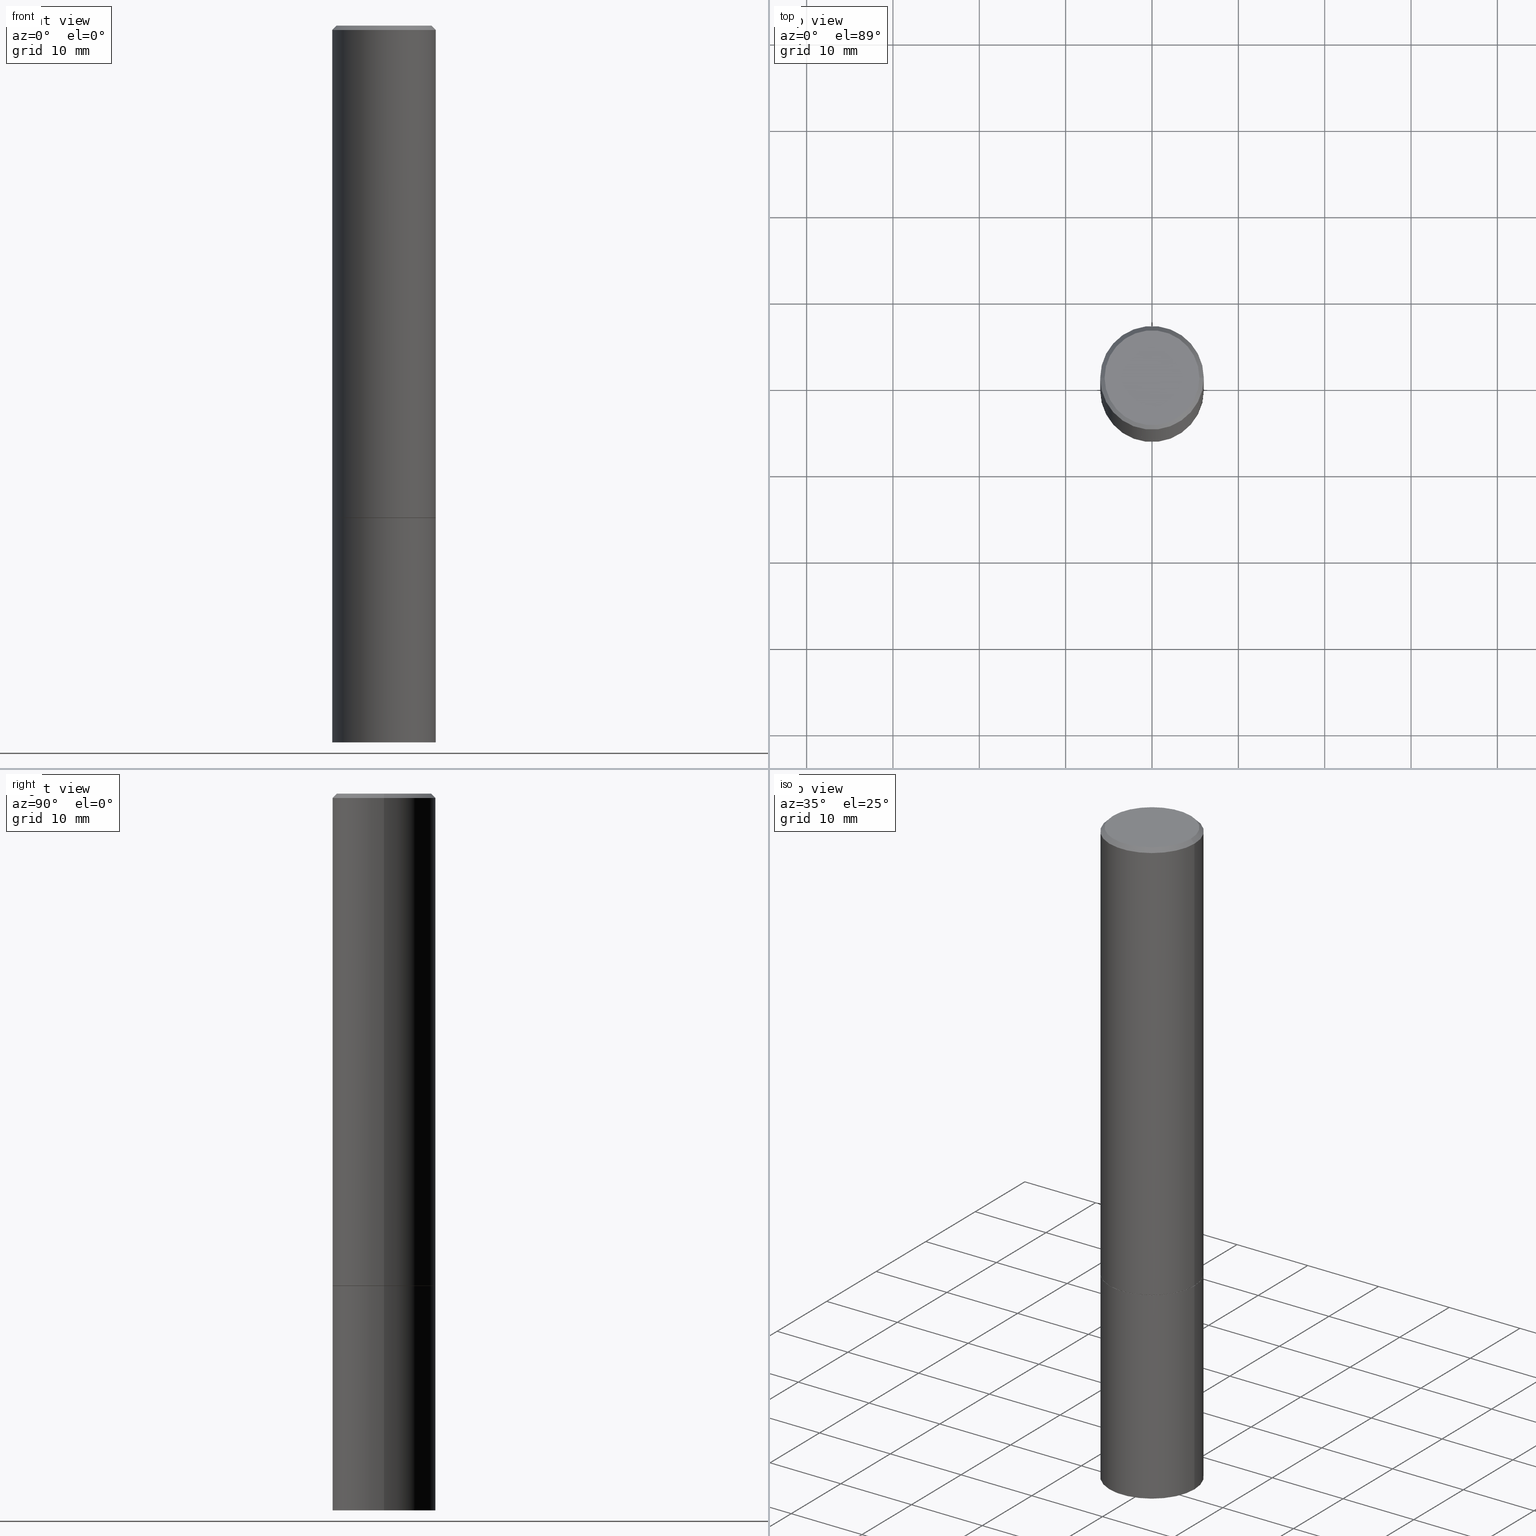
[diagram: canonical four-view strip — front | top / right | iso, engineering-drawing reading convention]
A machine part, canonical four-view strip (front | top / right | iso — engineering-drawing reading convention). The complete STEP part file that produces these views, byte-faithful:
ISO-10303-21;
HEADER;
FILE_DESCRIPTION (( 'STEP AP203' ),
    '1' );
FILE_NAME ('45493.STEP',
    '2024-02-28T09:43:29',
    ( '' ),
    ( '' ),
    'SwSTEP 2.0',
    'SolidWorks 2023',
    '' );
FILE_SCHEMA (( 'CONFIG_CONTROL_DESIGN' ));
ENDSEC;

DATA;
#1 = DIRECTION ( 'NONE',  ( -2.445468806185136597E-29, 3.491481338843145583E-15, 1.000000000000000000 ) ) ;
#2 = AXIS2_PLACEMENT_3D ( 'NONE', #242, #264, #10 ) ;
#3 = DIRECTION ( 'NONE',  ( -2.445468806185136597E-29, 3.491481338843145583E-15, 1.000000000000000000 ) ) ;
#4 = PERSON_AND_ORGANIZATION ( #161, #142 ) ;
#5 = DIRECTION ( 'NONE',  ( -1.000000000000000000, 6.982962677686266711E-15, 0.000000000000000000 ) ) ;
#6 = APPROVAL_ROLE ( '' ) ;
#7 = CARTESIAN_POINT ( 'NONE',  ( 0.000000000000000000, 0.000000000000000000, 0.000000000000000000 ) ) ;
#8 = DIRECTION ( 'NONE',  ( -2.445468806185136877E-29, 3.491481338843145188E-15, 1.000000000000000000 ) ) ;
#9 = ORIENTED_EDGE ( 'NONE', *, *, #29, .F. ) ;
#10 = DIRECTION ( 'NONE',  ( 1.000000000000000000, -6.982962677686266711E-15, 4.876176775795935793E-29 ) ) ;
#11 = EDGE_LOOP ( 'NONE', ( #19, #239 ) ) ;
#12 = CARTESIAN_POINT ( 'NONE',  ( -0.2351999999999999924, -6.158738303641924552E-15, -2.244100000000000428 ) ) ;
#13 = VECTOR ( 'NONE', #252, 39.37007874015748143 ) ;
#14 = VERTEX_POINT ( 'NONE', #79 ) ;
#15 = EDGE_LOOP ( 'NONE', ( #353, #47, #309, #46 ) ) ;
#16 = CARTESIAN_POINT ( 'NONE',  ( 5.487876547960065873E-29, -7.835233272497903917E-15, -2.244100000000000428 ) ) ;
#17 = APPROVAL_DATE_TIME ( #45, #84 ) ;
#18 = ADVANCED_FACE ( 'NONE', ( #53 ), #156, .T. ) ;
#19 = ORIENTED_EDGE ( 'NONE', *, *, #50, .T. ) ;
#20 = PERSON_AND_ORGANIZATION ( #161, #142 ) ;
#21 = CIRCLE ( 'NONE', #192, 0.2361999999999999933 ) ;
#22 = ORIENTED_EDGE ( 'NONE', *, *, #183, .T. ) ;
#23 = DIRECTION ( 'NONE',  ( -2.445468806185136597E-29, 3.491481338843145583E-15, 1.000000000000000000 ) ) ;
#24 = DIRECTION ( 'NONE',  ( 1.000000000000000000, -6.982962677686266711E-15, 4.876176775795936353E-29 ) ) ;
#25 = CC_DESIGN_APPROVAL ( #225, ( #357 ) ) ;
#26 = DIRECTION ( 'NONE',  ( -1.000000000000000000, 6.982962677686265922E-15, -4.876176775795935793E-29 ) ) ;
#27 = CALENDAR_DATE ( 2024, 28, 2 ) ;
#28 = CARTESIAN_POINT ( 'NONE',  ( 0.000000000000000000, 0.000000000000000000, 0.000000000000000000 ) ) ;
#29 = EDGE_CURVE ( 'NONE', #345, #65, #234, .T. ) ;
#30 = CARTESIAN_POINT ( 'NONE',  ( -0.2361999999999999933, -7.943871479852467996E-15, -2.244100000000000428 ) ) ;
#31 = VECTOR ( 'NONE', #8, 39.37007874015748143 ) ;
#32 = CARTESIAN_POINT ( 'NONE',  ( 1.649375784469550759E-15, 0.2361999999999921662, -2.244100000000000872 ) ) ;
#33 = LINE ( 'NONE', #94, #362 ) ;
#34 = DATE_TIME_ROLE ( 'classification_date' ) ;
#35 = VECTOR ( 'NONE', #77, 39.37007874015748143 ) ;
#36 = AXIS2_PLACEMENT_3D ( 'NONE', #108, #228, #86 ) ;
#37 = LINE ( 'NONE', #217, #293 ) ;
#38 = ORIENTED_EDGE ( 'NONE', *, *, #303, .T. ) ;
#39 = DIRECTION ( 'NONE',  ( -2.445468806185136877E-29, 3.491481338843145188E-15, 1.000000000000000000 ) ) ;
#40 = ADVANCED_FACE ( 'NONE', ( #223 ), #160, .T. ) ;
#41 = SECURITY_CLASSIFICATION_LEVEL ( 'unclassified' ) ;
#42 = CIRCLE ( 'NONE', #322, 0.2161999999999996980 ) ;
#43 = LOCAL_TIME ( 4, 43, 29.00000000000000000, #72 ) ;
#44 = ORIENTED_EDGE ( 'NONE', *, *, #130, .F. ) ;
#45 = DATE_AND_TIME ( #189, #187 ) ;
#46 = ORIENTED_EDGE ( 'NONE', *, *, #148, .F. ) ;
#47 = ORIENTED_EDGE ( 'NONE', *, *, #61, .T. ) ;
#48 = AXIS2_PLACEMENT_3D ( 'NONE', #229, #89, #169 ) ;
#49 = APPROVAL_ROLE ( '' ) ;
#50 = EDGE_CURVE ( 'NONE', #101, #210, #42, .T. ) ;
#51 = ADVANCED_FACE ( 'NONE', ( #249 ), #278, .T. ) ;
#52 = ORIENTED_EDGE ( 'NONE', *, *, #261, .F. ) ;
#53 = FACE_OUTER_BOUND ( 'NONE', #15, .T. ) ;
#54 = FACE_OUTER_BOUND ( 'NONE', #329, .T. ) ;
#55 = DIRECTION ( 'NONE',  ( 1.000000000000000000, -6.982962677686269077E-15, 0.000000000000000000 ) ) ;
#56 = DIRECTION ( 'NONE',  ( 1.000000000000000000, -6.982962677686266711E-15, 0.000000000000000000 ) ) ;
#57 = APPLICATION_CONTEXT ( 'configuration controlled 3d designs of mechanical parts and assemblies' ) ;
#58 = PERSON_AND_ORGANIZATION_ROLE ( 'design_supplier' ) ;
#59 = CARTESIAN_POINT ( 'NONE',  ( -0.2361999999999997157, 1.579546157692631255E-15, -0.02000000000000004552 ) ) ;
#60 = APPROVAL_PERSON_ORGANIZATION ( #328, #84, #49 ) ;
#61 = EDGE_CURVE ( 'NONE', #210, #124, #247, .T. ) ;
#62 = CARTESIAN_POINT ( 'NONE',  ( 4.890937612370284544E-31, -6.982962677686307633E-17, -0.02000000000000004552 ) ) ;
#63 = VERTEX_POINT ( 'NONE', #191 ) ;
#64 = PERSON_AND_ORGANIZATION ( #161, #142 ) ;
#65 = VERTEX_POINT ( 'NONE', #304 ) ;
#66 = ADVANCED_FACE ( 'NONE', ( #275 ), #246, .T. ) ;
#67 = AXIS2_PLACEMENT_3D ( 'NONE', #301, #193, #308 ) ;
#68 = DIRECTION ( 'NONE',  ( 1.000000000000000000, -6.982962677686266711E-15, 0.000000000000000000 ) ) ;
#69 = VECTOR ( 'NONE', #352, 39.37007874015748143 ) ;
#70 = DATE_AND_TIME ( #292, #43 ) ;
#71 = LINE ( 'NONE', #236, #69 ) ;
#72 = COORDINATED_UNIVERSAL_TIME_OFFSET ( 5, 0, .BEHIND. ) ;
#73 = ORIENTED_EDGE ( 'NONE', *, *, #244, .T. ) ;
#74 = AXIS2_PLACEMENT_3D ( 'NONE', #277, #270, #24 ) ;
#75 = ORIENTED_EDGE ( 'NONE', *, *, #351, .F. ) ;
#76 = ORIENTED_EDGE ( 'NONE', *, *, #339, .T. ) ;
#77 = DIRECTION ( 'NONE',  ( 0.7071067811865471286, -7.319954787623254468E-15, -0.7071067811865479058 ) ) ;
#78 = ADVANCED_FACE ( 'NONE', ( #54 ), #174, .F. ) ;
#79 = CARTESIAN_POINT ( 'NONE',  ( 0.2351999999999999924, -9.477626094289712851E-15, -2.244100000000000428 ) ) ;
#80 = CIRCLE ( 'NONE', #168, 0.2361999999999999933 ) ;
#81 = CARTESIAN_POINT ( 'NONE',  ( -1.043851414335219820E-46, 1.490343170380447200E-32, 4.268512490100411279E-18 ) ) ;
#82 = DIRECTION ( 'NONE',  ( 2.438088387897960049E-29, -3.491481338843145188E-15, -1.000000000000000000 ) ) ;
#83 = PLANE ( 'NONE',  #259 ) ;
#84 = APPROVAL ( #102, 'UNSPECIFIED' ) ;
#85 = AXIS2_PLACEMENT_3D ( 'NONE', #178, #211, #97 ) ;
#86 = DIRECTION ( 'NONE',  ( 1.000000000000000000, -6.982962677686264344E-15, 0.000000000000000000 ) ) ;
#87 = DIRECTION ( 'NONE',  ( -1.000000000000000000, 6.982962677686265922E-15, -4.876176775795935793E-29 ) ) ;
#88 = EDGE_CURVE ( 'NONE', #220, #290, #273, .T. ) ;
#89 = DIRECTION ( 'NONE',  ( -2.445468806185136597E-29, 3.491481338843145583E-15, 1.000000000000000000 ) ) ;
#90 = APPROVAL_PERSON_ORGANIZATION ( #115, #225, #6 ) ;
#91 = ORIENTED_EDGE ( 'NONE', *, *, #194, .T. ) ;
#92 = DIRECTION ( 'NONE',  ( -0.7071067811865232589, 7.493145998870265808E-15, 0.7071067811865715536 ) ) ;
#93 = ORIENTED_EDGE ( 'NONE', *, *, #190, .T. ) ;
#94 = CARTESIAN_POINT ( 'NONE',  ( -0.2351999999999999924, -6.164036757990147743E-15, -2.244100000000000428 ) ) ;
#95 = EDGE_LOOP ( 'NONE', ( #269, #176, #52, #276 ) ) ;
#96 = ORIENTED_EDGE ( 'NONE', *, *, #61, .F. ) ;
#97 = DIRECTION ( 'NONE',  ( 1.000000000000000000, -6.982962677686265133E-15, 0.000000000000000000 ) ) ;
#98 = ORIENTED_EDGE ( 'NONE', *, *, #221, .F. ) ;
#99 = ORIENTED_EDGE ( 'NONE', *, *, #190, .F. ) ;
#100 = ORIENTED_EDGE ( 'NONE', *, *, #265, .F. ) ;
#101 = VERTEX_POINT ( 'NONE', #288 ) ;
#102 = APPROVAL_STATUS ( 'not_yet_approved' ) ;
#103 = EDGE_LOOP ( 'NONE', ( #136, #150, #218, #360 ) ) ;
#104 = ADVANCED_BREP_SHAPE_REPRESENTATION ( '45493', ( #165, #173, #344 ), #306 ) ;
#105 = LOCAL_TIME ( 4, 43, 29.00000000000000000, #253 ) ;
#106 = LINE ( 'NONE', #336, #13 ) ;
#107 = EDGE_CURVE ( 'NONE', #210, #101, #214, .T. ) ;
#108 = CARTESIAN_POINT ( 'NONE',  ( 5.487876547960065873E-29, -7.835233272497903917E-15, -2.244100000000000428 ) ) ;
#109 = PERSON_AND_ORGANIZATION_ROLE ( 'creator' ) ;
#110 = DIRECTION ( 'NONE',  ( -2.445468806185136597E-29, 3.491481338843145583E-15, 1.000000000000000000 ) ) ;
#111 = AXIS2_PLACEMENT_3D ( 'NONE', #342, #110, #335 ) ;
#112 = CARTESIAN_POINT ( 'NONE',  ( 0.2361999999999997157, -1.690279253850496996E-15, -0.02000000000000004552 ) ) ;
#113 = ADVANCED_FACE ( 'NONE', ( #172 ), #83, .F. ) ;
#114 = CARTESIAN_POINT ( 'NONE',  ( 4.890937612370284544E-31, -6.982962677686307633E-17, -0.02000000000000004552 ) ) ;
#115 = PERSON_AND_ORGANIZATION ( #161, #142 ) ;
#116 =( NAMED_UNIT ( * ) SI_UNIT ( $, .STERADIAN. ) SOLID_ANGLE_UNIT ( ) );
#117 = PERSON_AND_ORGANIZATION_ROLE ( 'classification_officer' ) ;
#118 = AXIS2_PLACEMENT_3D ( 'NONE', #361, #243, #313 ) ;
#119 = CC_DESIGN_SECURITY_CLASSIFICATION ( #357, ( #268 ) ) ;
#120 = DIRECTION ( 'NONE',  ( 0.000000000000000000, 0.000000000000000000, 1.000000000000000000 ) ) ;
#121 = CARTESIAN_POINT ( 'NONE',  ( -0.2361999999999998545, 1.678301941865355605E-15, -1.161852468318208056E-29 ) ) ;
#122 = CC_DESIGN_PERSON_AND_ORGANIZATION_ASSIGNMENT ( #123, #117, ( #357 ) ) ;
#123 = PERSON_AND_ORGANIZATION ( #161, #142 ) ;
#124 = VERTEX_POINT ( 'NONE', #112 ) ;
#125 = FACE_OUTER_BOUND ( 'NONE', #237, .T. ) ;
#126 = DIMENSIONAL_EXPONENTS ( 1.000000000000000000, 0.000000000000000000, 0.000000000000000000, 0.000000000000000000, 0.000000000000000000, 0.000000000000000000, 0.000000000000000000 ) ;
#127 = AXIS2_PLACEMENT_3D ( 'NONE', #266, #175, #128 ) ;
#128 = DIRECTION ( 'NONE',  ( 1.000000000000000000, -6.982962677686269077E-15, 0.000000000000000000 ) ) ;
#129 = AXIS2_PLACEMENT_3D ( 'NONE', #198, #1, #170 ) ;
#130 = EDGE_CURVE ( 'NONE', #248, #196, #80, .T. ) ;
#131 = EDGE_LOOP ( 'NONE', ( #98, #91, #22, #330 ) ) ;
#132 = COORDINATED_UNIVERSAL_TIME_OFFSET ( 5, 0, .BEHIND. ) ;
#133 = PRODUCT ( '45493', '45493', '', ( #149 ) ) ;
#134 = CONICAL_SURFACE ( 'NONE', #231, 0.2361999999999997157, 0.7853981633974477239 ) ;
#135 = EDGE_LOOP ( 'NONE', ( #332, #9 ) ) ;
#136 = ORIENTED_EDGE ( 'NONE', *, *, #307, .F. ) ;
#137 = CARTESIAN_POINT ( 'NONE',  ( 4.890937612370284544E-31, -6.982962677686307633E-17, -0.02000000000000004552 ) ) ;
#138 = FACE_OUTER_BOUND ( 'NONE', #131, .T. ) ;
#139 = FACE_OUTER_BOUND ( 'NONE', #331, .T. ) ;
#140 = DIRECTION ( 'NONE',  ( -2.445468806185136597E-29, 3.491481338843145583E-15, 1.000000000000000000 ) ) ;
#141 = LINE ( 'NONE', #59, #343 ) ;
#142 = ORGANIZATION ( 'UNSPECIFIED', 'UNSPECIFIED', '' ) ;
#143 = DIRECTION ( 'NONE',  ( 1.000000000000000000, -6.982962677686266711E-15, 4.876176775795935793E-29 ) ) ;
#144 =( NAMED_UNIT ( * ) PLANE_ANGLE_UNIT ( ) SI_UNIT ( $, .RADIAN. ) );
#145 = APPROVAL_STATUS ( 'not_yet_approved' ) ;
#146 = DIRECTION ( 'NONE',  ( -2.445468806185136597E-29, 3.491481338843145583E-15, 1.000000000000000000 ) ) ;
#147 = APPROVAL_PERSON_ORGANIZATION ( #20, #195, #203 ) ;
#148 = EDGE_CURVE ( 'NONE', #101, #63, #141, .T. ) ;
#149 = MECHANICAL_CONTEXT ( 'NONE', #57, 'mechanical' ) ;
#150 = ORIENTED_EDGE ( 'NONE', *, *, #201, .T. ) ;
#151 = CYLINDRICAL_SURFACE ( 'NONE', #2, 0.2361999999999998545 ) ;
#152 =( CONVERSION_BASED_UNIT ( 'INCH', #215 ) LENGTH_UNIT ( ) NAMED_UNIT ( #126 ) );
#153 = ADVANCED_FACE ( 'NONE', ( #167 ), #206, .T. ) ;
#154 = DATE_AND_TIME ( #289, #300 ) ;
#155 = ADVANCED_FACE ( 'NONE', ( #139 ), #363, .F. ) ;
#156 = CONICAL_SURFACE ( 'NONE', #186, 0.2361999999999997157, 0.7853981633974477239 ) ;
#157 = CIRCLE ( 'NONE', #127, 0.2361999999999999933 ) ;
#158 = ORIENTED_EDGE ( 'NONE', *, *, #303, .F. ) ;
#159 = PRODUCT_DEFINITION_SHAPE ( 'NONE', 'NONE',  #166 ) ;
#160 = CYLINDRICAL_SURFACE ( 'NONE', #74, 0.2361999999999999933 ) ;
#161 = PERSON ( 'UNSPECIFIED', 'UNSPECIFIED', 'UNSPECIFIED', ('UNSPECIFIED'), ('UNSPECIFIED'), ('UNSPECIFIED') ) ;
#162 = ORIENTED_EDGE ( 'NONE', *, *, #50, .F. ) ;
#163 = PERSON_AND_ORGANIZATION ( #161, #142 ) ;
#164 = DIRECTION ( 'NONE',  ( 2.445468806185136597E-29, -3.491481338843145583E-15, -1.000000000000000000 ) ) ;
#165 = MANIFOLD_SOLID_BREP ( 'Body-Move/Copy2[1]', #267 ) ;
#166 = PRODUCT_DEFINITION ( 'UNKNOWN', '', #268, #280 ) ;
#167 = FACE_OUTER_BOUND ( 'NONE', #135, .T. ) ;
#168 = AXIS2_PLACEMENT_3D ( 'NONE', #233, #3, #55 ) ;
#169 = DIRECTION ( 'NONE',  ( 1.000000000000000000, -6.982962677686266711E-15, 4.876217060660162401E-29 ) ) ;
#170 = DIRECTION ( 'NONE',  ( 1.000000000000000000, -6.982962677686264344E-15, 0.000000000000000000 ) ) ;
#171 = ADVANCED_FACE ( 'NONE', ( #138 ), #197, .T. ) ;
#172 = FACE_OUTER_BOUND ( 'NONE', #11, .T. ) ;
#173 = MANIFOLD_SOLID_BREP ( 'Body-Move/Copy2[2]', #299 ) ;
#174 = PLANE ( 'NONE',  #284 ) ;
#175 = DIRECTION ( 'NONE',  ( -2.445468806185136597E-29, 3.491481338843145583E-15, 1.000000000000000000 ) ) ;
#176 = ORIENTED_EDGE ( 'NONE', *, *, #221, .T. ) ;
#177 = ADVANCED_FACE ( 'NONE', ( #285 ), #134, .T. ) ;
#178 = CARTESIAN_POINT ( 'NONE',  ( 7.991058417971171713E-29, -1.140911357093774644E-14, -3.267700000000000049 ) ) ;
#179 = ORIENTED_EDGE ( 'NONE', *, *, #148, .T. ) ;
#180 = AXIS2_PLACEMENT_3D ( 'NONE', #202, #314, #56 ) ;
#181 = LINE ( 'NONE', #121, #31 ) ;
#182 = ORIENTED_EDGE ( 'NONE', *, *, #201, .F. ) ;
#183 = EDGE_CURVE ( 'NONE', #248, #124, #106, .T. ) ;
#184 = DIRECTION ( 'NONE',  ( -2.445468806185136597E-29, 3.491481338843145583E-15, 1.000000000000000000 ) ) ;
#185 = COORDINATED_UNIVERSAL_TIME_OFFSET ( 5, 0, .BEHIND. ) ;
#186 = AXIS2_PLACEMENT_3D ( 'NONE', #137, #164, #188 ) ;
#187 = LOCAL_TIME ( 4, 43, 29.00000000000000000, #185 ) ;
#188 = DIRECTION ( 'NONE',  ( -1.000000000000000000, 6.982962677686266711E-15, 0.000000000000000000 ) ) ;
#189 = CALENDAR_DATE ( 2024, 28, 2 ) ;
#190 = EDGE_CURVE ( 'NONE', #14, #227, #200, .T. ) ;
#191 = CARTESIAN_POINT ( 'NONE',  ( -0.2361999999999997157, 1.579546157692631255E-15, -0.02000000000000004552 ) ) ;
#192 = AXIS2_PLACEMENT_3D ( 'NONE', #254, #140, #257 ) ;
#193 = DIRECTION ( 'NONE',  ( -2.445468806185136597E-29, 3.491481338843145583E-15, 1.000000000000000000 ) ) ;
#194 = EDGE_CURVE ( 'NONE', #196, #248, #21, .T. ) ;
#195 = APPROVAL ( #316, 'UNSPECIFIED' ) ;
#196 = VERTEX_POINT ( 'NONE', #365 ) ;
#197 = CYLINDRICAL_SURFACE ( 'NONE', #274, 0.2361999999999998545 ) ;
#198 = CARTESIAN_POINT ( 'NONE',  ( 5.487876547960065873E-29, -7.835233272497903917E-15, -2.244100000000000428 ) ) ;
#199 = AXIS2_PLACEMENT_3D ( 'NONE', #16, #245, #355 ) ;
#200 = CIRCLE ( 'NONE', #36, 0.2351999999999999924 ) ;
#201 = EDGE_CURVE ( 'NONE', #227, #14, #337, .T. ) ;
#202 = CARTESIAN_POINT ( 'NONE',  ( 4.890937612370284544E-31, -6.982962677686307633E-17, -0.02000000000000004552 ) ) ;
#203 = APPROVAL_ROLE ( '' ) ;
#204 = EDGE_CURVE ( 'NONE', #63, #124, #241, .T. ) ;
#205 = DIRECTION ( 'NONE',  ( -2.445468806185136597E-29, 3.491481338843145583E-15, 1.000000000000000000 ) ) ;
#206 = PLANE ( 'NONE',  #250 ) ;
#207 = APPROVAL_DATE_TIME ( #154, #225 ) ;
#208 = CC_DESIGN_APPROVAL ( #195, ( #268 ) ) ;
#209 = COORDINATED_UNIVERSAL_TIME_OFFSET ( 5, 0, .BEHIND. ) ;
#210 = VERTEX_POINT ( 'NONE', #282 ) ;
#211 = DIRECTION ( 'NONE',  ( -2.445468806185136597E-29, 3.491481338843145583E-15, 1.000000000000000000 ) ) ;
#212 = CARTESIAN_POINT ( 'NONE',  ( 0.000000000000000000, 0.000000000000000000, 0.000000000000000000 ) ) ;
#213 = ORIENTED_EDGE ( 'NONE', *, *, #88, .T. ) ;
#214 = CIRCLE ( 'NONE', #48, 0.2161999999999996980 ) ;
#215 = LENGTH_MEASURE_WITH_UNIT ( LENGTH_MEASURE( 0.02539999999999999897 ), #349 );
#216 = UNCERTAINTY_MEASURE_WITH_UNIT (LENGTH_MEASURE( 1.000000000000000082E-05 ), #152, 'distance_accuracy_value', 'NONE');
#217 = CARTESIAN_POINT ( 'NONE',  ( 0.2351999999999999924, -9.477626094289712851E-15, -2.244100000000000428 ) ) ;
#218 = ORIENTED_EDGE ( 'NONE', *, *, #351, .T. ) ;
#219 = DIRECTION ( 'NONE',  ( 1.000000000000000000, -6.982962677686266711E-15, 4.876217060660162401E-29 ) ) ;
#220 = VERTEX_POINT ( 'NONE', #30 ) ;
#221 = EDGE_CURVE ( 'NONE', #196, #63, #181, .T. ) ;
#222 = DATE_AND_TIME ( #356, #312 ) ;
#223 = FACE_OUTER_BOUND ( 'NONE', #346, .T. ) ;
#224 = EDGE_LOOP ( 'NONE', ( #96, #162, #179, #297 ) ) ;
#225 = APPROVAL ( #145, 'UNSPECIFIED' ) ;
#226 = VECTOR ( 'NONE', #39, 39.37007874015748143 ) ;
#227 = VERTEX_POINT ( 'NONE', #12 ) ;
#228 = DIRECTION ( 'NONE',  ( -2.445468806185136597E-29, 3.491481338843145583E-15, 1.000000000000000000 ) ) ;
#229 = CARTESIAN_POINT ( 'NONE',  ( -1.043851414335219820E-46, 1.490343170380447200E-32, 4.268512490100411279E-18 ) ) ;
#230 = DIRECTION ( 'NONE',  ( -2.438088387897960049E-29, 3.491481338843145188E-15, 1.000000000000000000 ) ) ;
#231 = AXIS2_PLACEMENT_3D ( 'NONE', #114, #315, #5 ) ;
#232 = CC_DESIGN_PERSON_AND_ORGANIZATION_ASSIGNMENT ( #4, #58, ( #268 ) ) ;
#233 = CARTESIAN_POINT ( 'NONE',  ( 5.485431079153880270E-29, -7.831741791159060910E-15, -2.243100000000000094 ) ) ;
#234 = CIRCLE ( 'NONE', #67, 0.2361999999999999933 ) ;
#235 = CARTESIAN_POINT ( 'NONE',  ( 0.2361999999999999933, -1.649375784469496131E-15, 1.151752954443000088E-29 ) ) ;
#236 = CARTESIAN_POINT ( 'NONE',  ( -0.2361999999999999933, 1.678301941865356591E-15, -1.161852468318208757E-29 ) ) ;
#237 = EDGE_LOOP ( 'NONE', ( #333, #325, #38, #302 ) ) ;
#238 = CARTESIAN_POINT ( 'NONE',  ( -0.2361999999999999933, -7.943871479852467996E-15, -3.267700000000000049 ) ) ;
#239 = ORIENTED_EDGE ( 'NONE', *, *, #107, .T. ) ;
#240 = AXIS2_PLACEMENT_3D ( 'NONE', #32, #281, #260 ) ;
#241 = CIRCLE ( 'NONE', #180, 0.2361999999999997157 ) ;
#242 = CARTESIAN_POINT ( 'NONE',  ( 0.000000000000000000, 0.000000000000000000, 0.000000000000000000 ) ) ;
#243 = DIRECTION ( 'NONE',  ( -2.445468806185136597E-29, 3.491481338843145583E-15, 1.000000000000000000 ) ) ;
#244 = EDGE_CURVE ( 'NONE', #345, #220, #71, .T. ) ;
#245 = DIRECTION ( 'NONE',  ( -2.445468806185136597E-29, 3.491481338843145583E-15, 1.000000000000000000 ) ) ;
#246 = CONICAL_SURFACE ( 'NONE', #118, 0.2351999999999999924, 0.7853981633974141952 ) ;
#247 = LINE ( 'NONE', #358, #35 ) ;
#248 = VERTEX_POINT ( 'NONE', #296 ) ;
#249 = FACE_OUTER_BOUND ( 'NONE', #271, .T. ) ;
#250 = AXIS2_PLACEMENT_3D ( 'NONE', #338, #82, #87 ) ;
#251 = CIRCLE ( 'NONE', #85, 0.2361999999999999933 ) ;
#252 = DIRECTION ( 'NONE',  ( -2.445468806185136877E-29, 3.491481338843145188E-15, 1.000000000000000000 ) ) ;
#253 = COORDINATED_UNIVERSAL_TIME_OFFSET ( 5, 0, .BEHIND. ) ;
#254 = CARTESIAN_POINT ( 'NONE',  ( 5.485431079153880270E-29, -7.831741791159060910E-15, -2.243100000000000094 ) ) ;
#255 = APPROVAL_DATE_TIME ( #364, #195 ) ;
#256 = CC_DESIGN_PERSON_AND_ORGANIZATION_ASSIGNMENT ( #366, #109, ( #268 ) ) ;
#257 = DIRECTION ( 'NONE',  ( 1.000000000000000000, -6.982962677686269077E-15, 0.000000000000000000 ) ) ;
#258 = CARTESIAN_POINT ( 'NONE',  ( 5.487876547960065873E-29, -7.835233272497903917E-15, -2.244100000000000428 ) ) ;
#259 = AXIS2_PLACEMENT_3D ( 'NONE', #310, #279, #26 ) ;
#260 = DIRECTION ( 'NONE',  ( -1.000000000000000000, 6.982962677686265922E-15, -4.876176775795935793E-29 ) ) ;
#261 = EDGE_CURVE ( 'NONE', #124, #63, #323, .T. ) ;
#262 = LINE ( 'NONE', #235, #226 ) ;
#263 = APPLICATION_PROTOCOL_DEFINITION ( 'international standard', 'config_control_design', 1994, #57 ) ;
#264 = DIRECTION ( 'NONE',  ( -2.445468806185136597E-29, 3.491481338843145583E-15, 1.000000000000000000 ) ) ;
#265 = EDGE_CURVE ( 'NONE', #290, #220, #157, .T. ) ;
#266 = CARTESIAN_POINT ( 'NONE',  ( 5.487876547960065873E-29, -7.835233272497903917E-15, -2.244100000000000428 ) ) ;
#267 = CLOSED_SHELL ( 'NONE', ( #40, #153, #155, #359 ) ) ;
#268 = PRODUCT_DEFINITION_FORMATION_WITH_SPECIFIED_SOURCE ( 'ANY', '', #133, .NOT_KNOWN. ) ;
#269 = ORIENTED_EDGE ( 'NONE', *, *, #130, .T. ) ;
#270 = DIRECTION ( 'NONE',  ( -2.445468806185136597E-29, 3.491481338843145583E-15, 1.000000000000000000 ) ) ;
#271 = EDGE_LOOP ( 'NONE', ( #93, #320, #44, #75 ) ) ;
#272 = DATE_TIME_ROLE ( 'creation_date' ) ;
#273 = CIRCLE ( 'NONE', #111, 0.2361999999999999933 ) ;
#274 = AXIS2_PLACEMENT_3D ( 'NONE', #28, #205, #143 ) ;
#275 = FACE_OUTER_BOUND ( 'NONE', #103, .T. ) ;
#276 = ORIENTED_EDGE ( 'NONE', *, *, #183, .F. ) ;
#277 = CARTESIAN_POINT ( 'NONE',  ( 0.000000000000000000, 0.000000000000000000, 0.000000000000000000 ) ) ;
#278 = CONICAL_SURFACE ( 'NONE', #199, 0.2351999999999999924, 0.7853981633974141952 ) ;
#279 = DIRECTION ( 'NONE',  ( 2.438088387897960049E-29, -3.491481338843145188E-15, -1.000000000000000000 ) ) ;
#280 = DESIGN_CONTEXT ( 'detailed design', #283, 'design' ) ;
#281 = DIRECTION ( 'NONE',  ( 2.438088387897960049E-29, -3.491481338843145188E-15, -1.000000000000000000 ) ) ;
#282 = CARTESIAN_POINT ( 'NONE',  ( 0.2161999999999996980, -1.586759460484350016E-15, 4.268512490111238857E-18 ) ) ;
#283 = APPLICATION_CONTEXT ( 'configuration controlled 3d designs of mechanical parts and assemblies' ) ;
#284 = AXIS2_PLACEMENT_3D ( 'NONE', #258, #230, #340 ) ;
#285 = FACE_OUTER_BOUND ( 'NONE', #224, .T. ) ;
#286 = AXIS2_PLACEMENT_3D ( 'NONE', #62, #184, #68 ) ;
#287 = AXIS2_PLACEMENT_3D ( 'NONE', #212, #146, #291 ) ;
#288 = CARTESIAN_POINT ( 'NONE',  ( -0.2161999999999996980, 1.544631344304200000E-15, 4.268512490089730842E-18 ) ) ;
#289 = CALENDAR_DATE ( 2024, 28, 2 ) ;
#290 = VERTEX_POINT ( 'NONE', #347 ) ;
#291 = DIRECTION ( 'NONE',  ( 1.000000000000000000, -6.982962677686266711E-15, 4.876176775795936353E-29 ) ) ;
#292 = CALENDAR_DATE ( 2024, 28, 2 ) ;
#293 = VECTOR ( 'NONE', #324, 39.37007874015748854 ) ;
#294 = PERSON_AND_ORGANIZATION_ROLE ( 'design_owner' ) ;
#295 = ADVANCED_FACE ( 'NONE', ( #298 ), #151, .T. ) ;
#296 = CARTESIAN_POINT ( 'NONE',  ( 0.2361999999999999933, -9.481117575628557435E-15, -2.243100000000000094 ) ) ;
#297 = ORIENTED_EDGE ( 'NONE', *, *, #204, .T. ) ;
#298 = FACE_OUTER_BOUND ( 'NONE', #95, .T. ) ;
#299 = CLOSED_SHELL ( 'NONE', ( #51, #295, #18, #177, #171, #66, #78, #113 ) ) ;
#300 = LOCAL_TIME ( 4, 43, 29.00000000000000000, #209 ) ;
#301 = CARTESIAN_POINT ( 'NONE',  ( 7.991058417971171713E-29, -1.140911357093774644E-14, -3.267700000000000049 ) ) ;
#302 = ORIENTED_EDGE ( 'NONE', *, *, #88, .F. ) ;
#303 = EDGE_CURVE ( 'NONE', #65, #290, #262, .T. ) ;
#304 = CARTESIAN_POINT ( 'NONE',  ( 0.2361999999999999933, -1.305848935540724297E-14, -3.267700000000000049 ) ) ;
#305 = PERSON_AND_ORGANIZATION_ROLE ( 'creator' ) ;
#306 =( GEOMETRIC_REPRESENTATION_CONTEXT ( 3 ) GLOBAL_UNCERTAINTY_ASSIGNED_CONTEXT ( ( #216 ) ) GLOBAL_UNIT_ASSIGNED_CONTEXT ( ( #152, #144, #116 ) ) REPRESENTATION_CONTEXT ( 'NONE', 'WORKASPACE' ) );
#307 = EDGE_CURVE ( 'NONE', #227, #196, #33, .T. ) ;
#308 = DIRECTION ( 'NONE',  ( 1.000000000000000000, -6.982962677686265133E-15, 0.000000000000000000 ) ) ;
#309 = ORIENTED_EDGE ( 'NONE', *, *, #261, .T. ) ;
#310 = CARTESIAN_POINT ( 'NONE',  ( 1.509716530915768548E-15, 0.2161999999999996980, -7.527240092128368218E-16 ) ) ;
#311 = CC_DESIGN_PERSON_AND_ORGANIZATION_ASSIGNMENT ( #64, #294, ( #133 ) ) ;
#312 = LOCAL_TIME ( 4, 43, 29.00000000000000000, #132 ) ;
#313 = DIRECTION ( 'NONE',  ( 1.000000000000000000, -6.982962677686264344E-15, 0.000000000000000000 ) ) ;
#314 = DIRECTION ( 'NONE',  ( -2.445468806185136597E-29, 3.491481338843145583E-15, 1.000000000000000000 ) ) ;
#315 = DIRECTION ( 'NONE',  ( 2.445468806185136597E-29, -3.491481338843145583E-15, -1.000000000000000000 ) ) ;
#316 = APPROVAL_STATUS ( 'not_yet_approved' ) ;
#317 = DIRECTION ( 'NONE',  ( -0.7071067811865471286, 2.468850131082252722E-15, -0.7071067811865479058 ) ) ;
#318 = SHAPE_DEFINITION_REPRESENTATION ( #159, #104 ) ;
#319 = DIRECTION ( 'NONE',  ( 1.000000000000000000, 0.000000000000000000, 0.000000000000000000 ) ) ;
#320 = ORIENTED_EDGE ( 'NONE', *, *, #307, .T. ) ;
#321 = CC_DESIGN_PERSON_AND_ORGANIZATION_ASSIGNMENT ( #163, #305, ( #166 ) ) ;
#322 = AXIS2_PLACEMENT_3D ( 'NONE', #81, #23, #219 ) ;
#323 = CIRCLE ( 'NONE', #286, 0.2361999999999997157 ) ;
#324 = DIRECTION ( 'NONE',  ( 0.7071067811865232589, -2.468850131082003836E-15, 0.7071067811865715536 ) ) ;
#325 = ORIENTED_EDGE ( 'NONE', *, *, #29, .T. ) ;
#326 = CC_DESIGN_DATE_AND_TIME_ASSIGNMENT ( #70, #34, ( #357 ) ) ;
#327 = CYLINDRICAL_SURFACE ( 'NONE', #287, 0.2361999999999999933 ) ;
#328 = PERSON_AND_ORGANIZATION ( #161, #142 ) ;
#329 = EDGE_LOOP ( 'NONE', ( #99, #182 ) ) ;
#330 = ORIENTED_EDGE ( 'NONE', *, *, #204, .F. ) ;
#331 = EDGE_LOOP ( 'NONE', ( #348, #213 ) ) ;
#332 = ORIENTED_EDGE ( 'NONE', *, *, #339, .F. ) ;
#333 = ORIENTED_EDGE ( 'NONE', *, *, #244, .F. ) ;
#334 = PRODUCT_RELATED_PRODUCT_CATEGORY ( 'detail', '', ( #133 ) ) ;
#335 = DIRECTION ( 'NONE',  ( 1.000000000000000000, -6.982962677686269077E-15, 0.000000000000000000 ) ) ;
#336 = CARTESIAN_POINT ( 'NONE',  ( 0.2361999999999998545, -1.649375784469495145E-15, 1.151752954442999387E-29 ) ) ;
#337 = CIRCLE ( 'NONE', #129, 0.2351999999999999924 ) ;
#338 = CARTESIAN_POINT ( 'NONE',  ( 1.649375784469575806E-15, 0.2361999999999885858, -3.267700000000001381 ) ) ;
#339 = EDGE_CURVE ( 'NONE', #65, #345, #251, .T. ) ;
#340 = DIRECTION ( 'NONE',  ( 1.000000000000000000, -6.982962677686265922E-15, 4.876176775795935793E-29 ) ) ;
#341 = CC_DESIGN_DATE_AND_TIME_ASSIGNMENT ( #222, #272, ( #166 ) ) ;
#342 = CARTESIAN_POINT ( 'NONE',  ( 5.487876547960065873E-29, -7.835233272497903917E-15, -2.244100000000000428 ) ) ;
#343 = VECTOR ( 'NONE', #317, 39.37007874015748143 ) ;
#344 = AXIS2_PLACEMENT_3D ( 'NONE', #7, #120, #319 ) ;
#345 = VERTEX_POINT ( 'NONE', #238 ) ;
#346 = EDGE_LOOP ( 'NONE', ( #76, #73, #100, #158 ) ) ;
#347 = CARTESIAN_POINT ( 'NONE',  ( 0.2361999999999999933, -9.484609056967400443E-15, -2.244100000000000428 ) ) ;
#348 = ORIENTED_EDGE ( 'NONE', *, *, #265, .T. ) ;
#349 =( LENGTH_UNIT ( ) NAMED_UNIT ( * ) SI_UNIT ( $, .METRE. ) );
#350 = CC_DESIGN_APPROVAL ( #84, ( #166 ) ) ;
#351 = EDGE_CURVE ( 'NONE', #14, #248, #37, .T. ) ;
#352 = DIRECTION ( 'NONE',  ( -2.445468806185136877E-29, 3.491481338843145188E-15, 1.000000000000000000 ) ) ;
#353 = ORIENTED_EDGE ( 'NONE', *, *, #107, .F. ) ;
#354 = APPLICATION_PROTOCOL_DEFINITION ( 'international standard', 'config_control_design', 1994, #283 ) ;
#355 = DIRECTION ( 'NONE',  ( 1.000000000000000000, -6.982962677686264344E-15, 0.000000000000000000 ) ) ;
#356 = CALENDAR_DATE ( 2024, 28, 2 ) ;
#357 = SECURITY_CLASSIFICATION ( '', '', #41 ) ;
#358 = CARTESIAN_POINT ( 'NONE',  ( 0.2361999999999997157, -1.690279253850496996E-15, -0.02000000000000004552 ) ) ;
#359 = ADVANCED_FACE ( 'NONE', ( #125 ), #327, .T. ) ;
#360 = ORIENTED_EDGE ( 'NONE', *, *, #194, .F. ) ;
#361 = CARTESIAN_POINT ( 'NONE',  ( 5.487876547960065873E-29, -7.835233272497903917E-15, -2.244100000000000428 ) ) ;
#362 = VECTOR ( 'NONE', #92, 39.37007874015748854 ) ;
#363 = PLANE ( 'NONE',  #240 ) ;
#364 = DATE_AND_TIME ( #27, #105 ) ;
#365 = CARTESIAN_POINT ( 'NONE',  ( -0.2362000000000000210, -2.272483767102602555E-15, -2.243100000000000094 ) ) ;
#366 = PERSON_AND_ORGANIZATION ( #161, #142 ) ;
ENDSEC;
END-ISO-10303-21;
